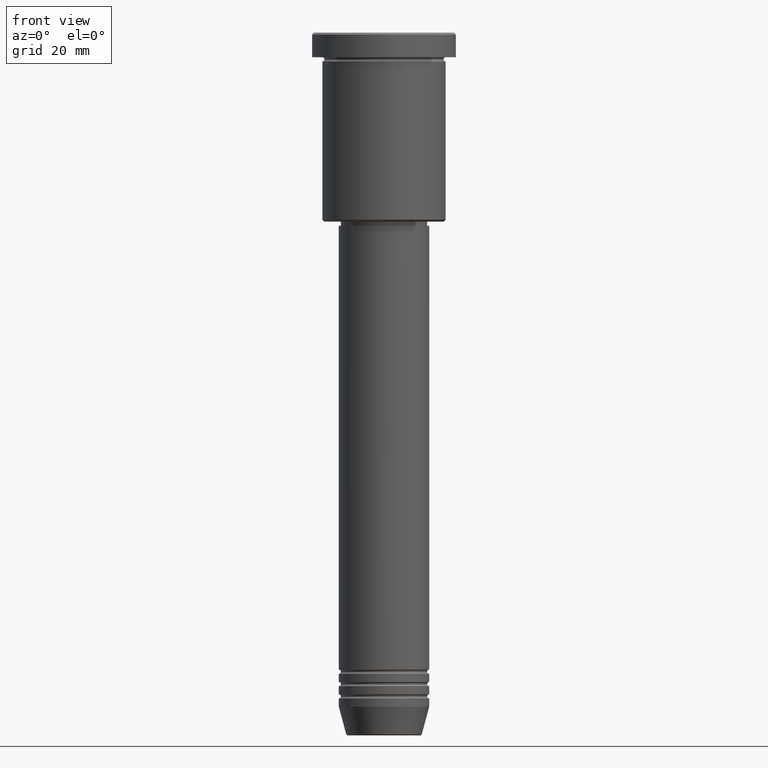
[diagram: clean part render]
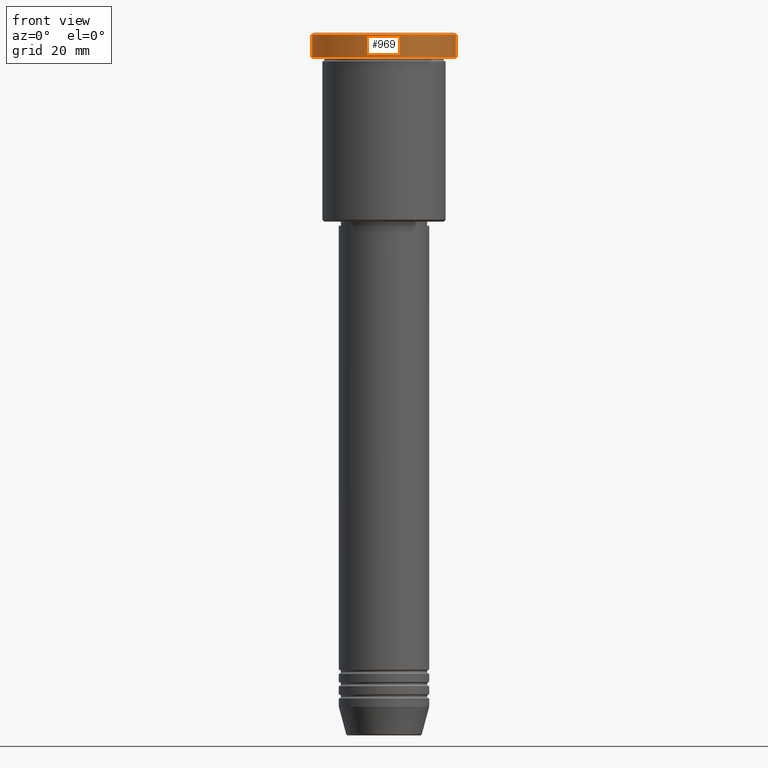
[diagram: same view with one face highlighted and labeled with its STEP entity id]
A machine part, front view. The second image highlights one B-rep face of the part: STEP entity #969.
In plain terms, the highlighted cylindrical surface (partial cylindrical patch) has radius 17.5 mm, axis along (-0, -0, 1).
Its self-contained STEP definition (entity closure, byte-faithful):
#28 = AXIS2_PLACEMENT_3D ( 'NONE', #1148, #1071, #1163 ) ;
#71 = CARTESIAN_POINT ( 'NONE',  ( 0.000000000000000000, 0.000000000000000000, -0.4999999999999727995 ) ) ;
#82 = CARTESIAN_POINT ( 'NONE',  ( -17.50000000000000000, 2.143131898507868248E-15, -0.4999999999999727995 ) ) ;
#86 = VERTEX_POINT ( 'NONE', #806 ) ;
#91 = CARTESIAN_POINT ( 'NONE',  ( -17.50000000000000000, 2.143131898507868248E-15, -5.999999999999995559 ) ) ;
#120 = VERTEX_POINT ( 'NONE', #91 ) ;
#200 = CARTESIAN_POINT ( 'NONE',  ( 17.50000000000000000, 0.000000000000000000, 0.000000000000000000 ) ) ;
#205 = DIRECTION ( 'NONE',  ( -0.000000000000000000, -0.000000000000000000, 1.000000000000000000 ) ) ;
#211 = CARTESIAN_POINT ( 'NONE',  ( -17.50000000000000000, 2.143131898507868248E-15, 0.000000000000000000 ) ) ;
#257 = CARTESIAN_POINT ( 'NONE',  ( 0.000000000000000000, 0.000000000000000000, -5.999999999999995559 ) ) ;
#343 = ORIENTED_EDGE ( 'NONE', *, *, #1134, .T. ) ;
#353 = CIRCLE ( 'NONE', #698, 17.50000000000000000 ) ;
#362 = VERTEX_POINT ( 'NONE', #928 ) ;
#391 = AXIS2_PLACEMENT_3D ( 'NONE', #257, #629, #1000 ) ;
#412 = CYLINDRICAL_SURFACE ( 'NONE', #28, 17.50000000000000000 ) ;
#460 = VECTOR ( 'NONE', #205, 1000.000000000000000 ) ;
#529 = VECTOR ( 'NONE', #1132, 1000.000000000000000 ) ;
#552 = EDGE_CURVE ( 'NONE', #86, #362, #893, .T. ) ;
#580 = LINE ( 'NONE', #211, #529 ) ;
#629 = DIRECTION ( 'NONE',  ( -0.000000000000000000, -0.000000000000000000, 1.000000000000000000 ) ) ;
#642 = DIRECTION ( 'NONE',  ( 0.000000000000000000, 0.000000000000000000, -1.000000000000000000 ) ) ;
#698 = AXIS2_PLACEMENT_3D ( 'NONE', #71, #642, #914 ) ;
#722 = ORIENTED_EDGE ( 'NONE', *, *, #552, .T. ) ;
#758 = ORIENTED_EDGE ( 'NONE', *, *, #760, .T. ) ;
#760 = EDGE_CURVE ( 'NONE', #120, #86, #1061, .T. ) ;
#788 = EDGE_CURVE ( 'NONE', #120, #849, #580, .T. ) ;
#806 = CARTESIAN_POINT ( 'NONE',  ( 17.50000000000000000, 0.000000000000000000, -5.999999999999995559 ) ) ;
#849 = VERTEX_POINT ( 'NONE', #82 ) ;
#893 = LINE ( 'NONE', #200, #460 ) ;
#899 = ORIENTED_EDGE ( 'NONE', *, *, #788, .F. ) ;
#914 = DIRECTION ( 'NONE',  ( 1.000000000000000000, 0.000000000000000000, 0.000000000000000000 ) ) ;
#928 = CARTESIAN_POINT ( 'NONE',  ( 17.50000000000000000, 0.000000000000000000, -0.4999999999999727995 ) ) ;
#929 = EDGE_LOOP ( 'NONE', ( #899, #758, #722, #343 ) ) ;
#969 = ADVANCED_FACE ( 'NONE', ( #1159 ), #412, .T. ) ;
#1000 = DIRECTION ( 'NONE',  ( 1.000000000000000000, 0.000000000000000000, 0.000000000000000000 ) ) ;
#1061 = CIRCLE ( 'NONE', #391, 17.50000000000000000 ) ;
#1071 = DIRECTION ( 'NONE',  ( -0.000000000000000000, -0.000000000000000000, 1.000000000000000000 ) ) ;
#1132 = DIRECTION ( 'NONE',  ( -0.000000000000000000, -0.000000000000000000, 1.000000000000000000 ) ) ;
#1134 = EDGE_CURVE ( 'NONE', #362, #849, #353, .T. ) ;
#1148 = CARTESIAN_POINT ( 'NONE',  ( 0.000000000000000000, 0.000000000000000000, 0.000000000000000000 ) ) ;
#1159 = FACE_OUTER_BOUND ( 'NONE', #929, .T. ) ;
#1163 = DIRECTION ( 'NONE',  ( 1.000000000000000000, 0.000000000000000000, 0.000000000000000000 ) ) ;